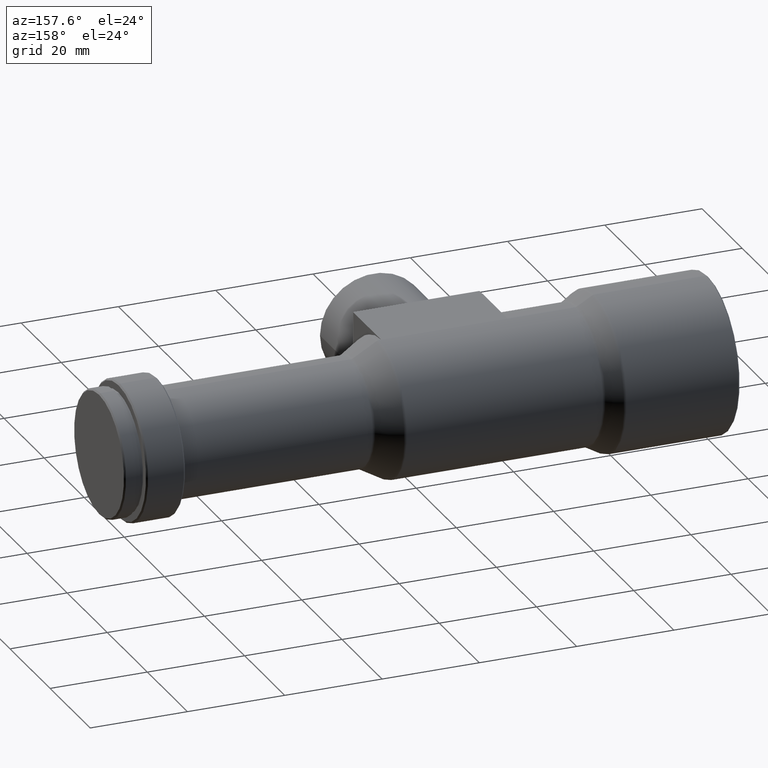
[diagram: clean part render]
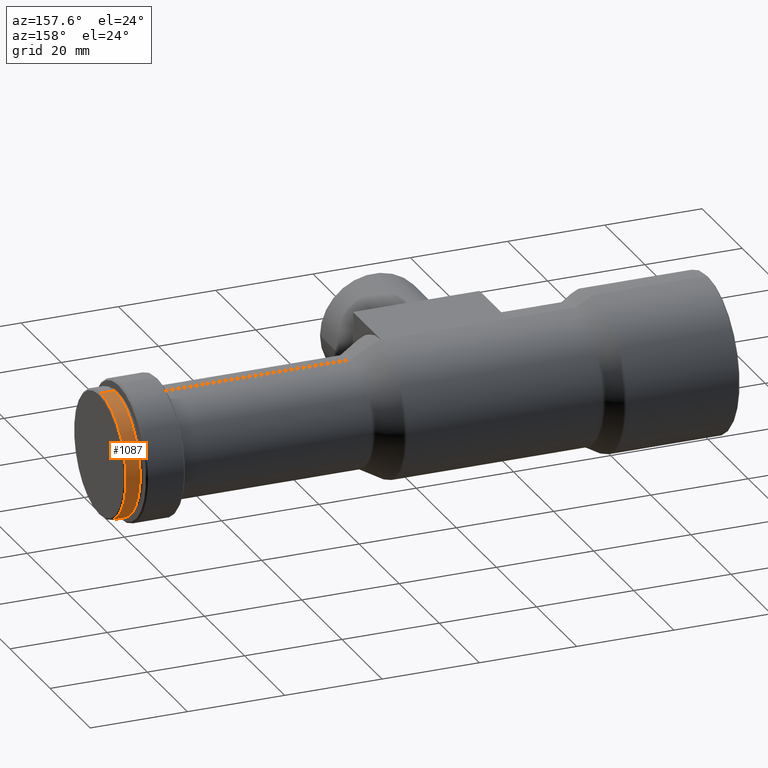
[diagram: same view with one face highlighted and labeled with its STEP entity id]
A machine part, auxiliary view. The second image highlights one B-rep face of the part: STEP entity #1087.
In plain terms, the highlighted cylindrical surface (partial cylindrical patch) has radius 12.7 mm, axis along (-1, -0, -0).
Its self-contained STEP definition (entity closure, byte-faithful):
#22 = CARTESIAN_POINT ( 'NONE',  ( 0.0000000000000000000, 0.0000000000000000000, 0.0000000000000000000 ) ) ;
#121 = EDGE_CURVE ( 'NONE', #611, #1161, #543, .T. ) ;
#179 = EDGE_LOOP ( 'NONE', ( #357, #1094, #623, #715 ) ) ;
#266 = EDGE_CURVE ( 'NONE', #611, #948, #726, .T. ) ;
#280 = CARTESIAN_POINT ( 'NONE',  ( 0.0000000000000000000, 0.0000000000000000000, 12.70000000000001200 ) ) ;
#357 = ORIENTED_EDGE ( 'NONE', *, *, #121, .T. ) ;
#450 = LINE ( 'NONE', #1289, #946 ) ;
#458 = AXIS2_PLACEMENT_3D ( 'NONE', #1128, #609, #919 ) ;
#462 = VECTOR ( 'NONE', #1068, 1000.000000000000000 ) ;
#468 = DIRECTION ( 'NONE',  ( 0.0000000000000000000, 0.0000000000000000000, 1.000000000000000000 ) ) ;
#476 = DIRECTION ( 'NONE',  ( -1.000000000000000000, -0.0000000000000000000, -0.0000000000000000000 ) ) ;
#503 = AXIS2_PLACEMENT_3D ( 'NONE', #1170, #771, #468 ) ;
#543 = CIRCLE ( 'NONE', #503, 12.70000000000001200 ) ;
#570 = EDGE_CURVE ( 'NONE', #1161, #739, #450, .T. ) ;
#609 = DIRECTION ( 'NONE',  ( -1.000000000000000000, -0.0000000000000000000, -0.0000000000000000000 ) ) ;
#611 = VERTEX_POINT ( 'NONE', #890 ) ;
#623 = ORIENTED_EDGE ( 'NONE', *, *, #829, .F. ) ;
#667 = CIRCLE ( 'NONE', #458, 12.70000000000001200 ) ;
#715 = ORIENTED_EDGE ( 'NONE', *, *, #266, .F. ) ;
#726 = LINE ( 'NONE', #280, #462 ) ;
#739 = VERTEX_POINT ( 'NONE', #924 ) ;
#771 = DIRECTION ( 'NONE',  ( -1.000000000000000000, -0.0000000000000000000, -0.0000000000000000000 ) ) ;
#797 = CARTESIAN_POINT ( 'NONE',  ( 122.0000000000000000, 0.0000000000000000000, 12.70000000000001200 ) ) ;
#829 = EDGE_CURVE ( 'NONE', #948, #739, #667, .T. ) ;
#866 = AXIS2_PLACEMENT_3D ( 'NONE', #22, #1021, #1110 ) ;
#890 = CARTESIAN_POINT ( 'NONE',  ( 124.9000000000000100, 0.0000000000000000000, 12.70000000000001200 ) ) ;
#919 = DIRECTION ( 'NONE',  ( 0.0000000000000000000, 0.0000000000000000000, 1.000000000000000000 ) ) ;
#924 = CARTESIAN_POINT ( 'NONE',  ( 122.0000000000000000, 1.555301434917140000E-015, -12.70000000000001200 ) ) ;
#946 = VECTOR ( 'NONE', #476, 1000.000000000000000 ) ;
#948 = VERTEX_POINT ( 'NONE', #797 ) ;
#962 = CYLINDRICAL_SURFACE ( 'NONE', #866, 12.70000000000001200 ) ;
#1021 = DIRECTION ( 'NONE',  ( -1.000000000000000000, -0.0000000000000000000, -0.0000000000000000000 ) ) ;
#1068 = DIRECTION ( 'NONE',  ( -1.000000000000000000, -0.0000000000000000000, -0.0000000000000000000 ) ) ;
#1087 = ADVANCED_FACE ( 'NONE', ( #1280 ), #962, .T. ) ;
#1094 = ORIENTED_EDGE ( 'NONE', *, *, #570, .T. ) ;
#1110 = DIRECTION ( 'NONE',  ( 0.0000000000000000000, 0.0000000000000000000, 1.000000000000000000 ) ) ;
#1125 = CARTESIAN_POINT ( 'NONE',  ( 124.9000000000000100, 1.555301434917140000E-015, -12.70000000000001200 ) ) ;
#1128 = CARTESIAN_POINT ( 'NONE',  ( 122.0000000000000000, 0.0000000000000000000, 0.0000000000000000000 ) ) ;
#1161 = VERTEX_POINT ( 'NONE', #1125 ) ;
#1170 = CARTESIAN_POINT ( 'NONE',  ( 124.9000000000000100, 0.0000000000000000000, 0.0000000000000000000 ) ) ;
#1280 = FACE_OUTER_BOUND ( 'NONE', #179, .T. ) ;
#1289 = CARTESIAN_POINT ( 'NONE',  ( 0.0000000000000000000, 1.555301434917140000E-015, -12.70000000000001200 ) ) ;